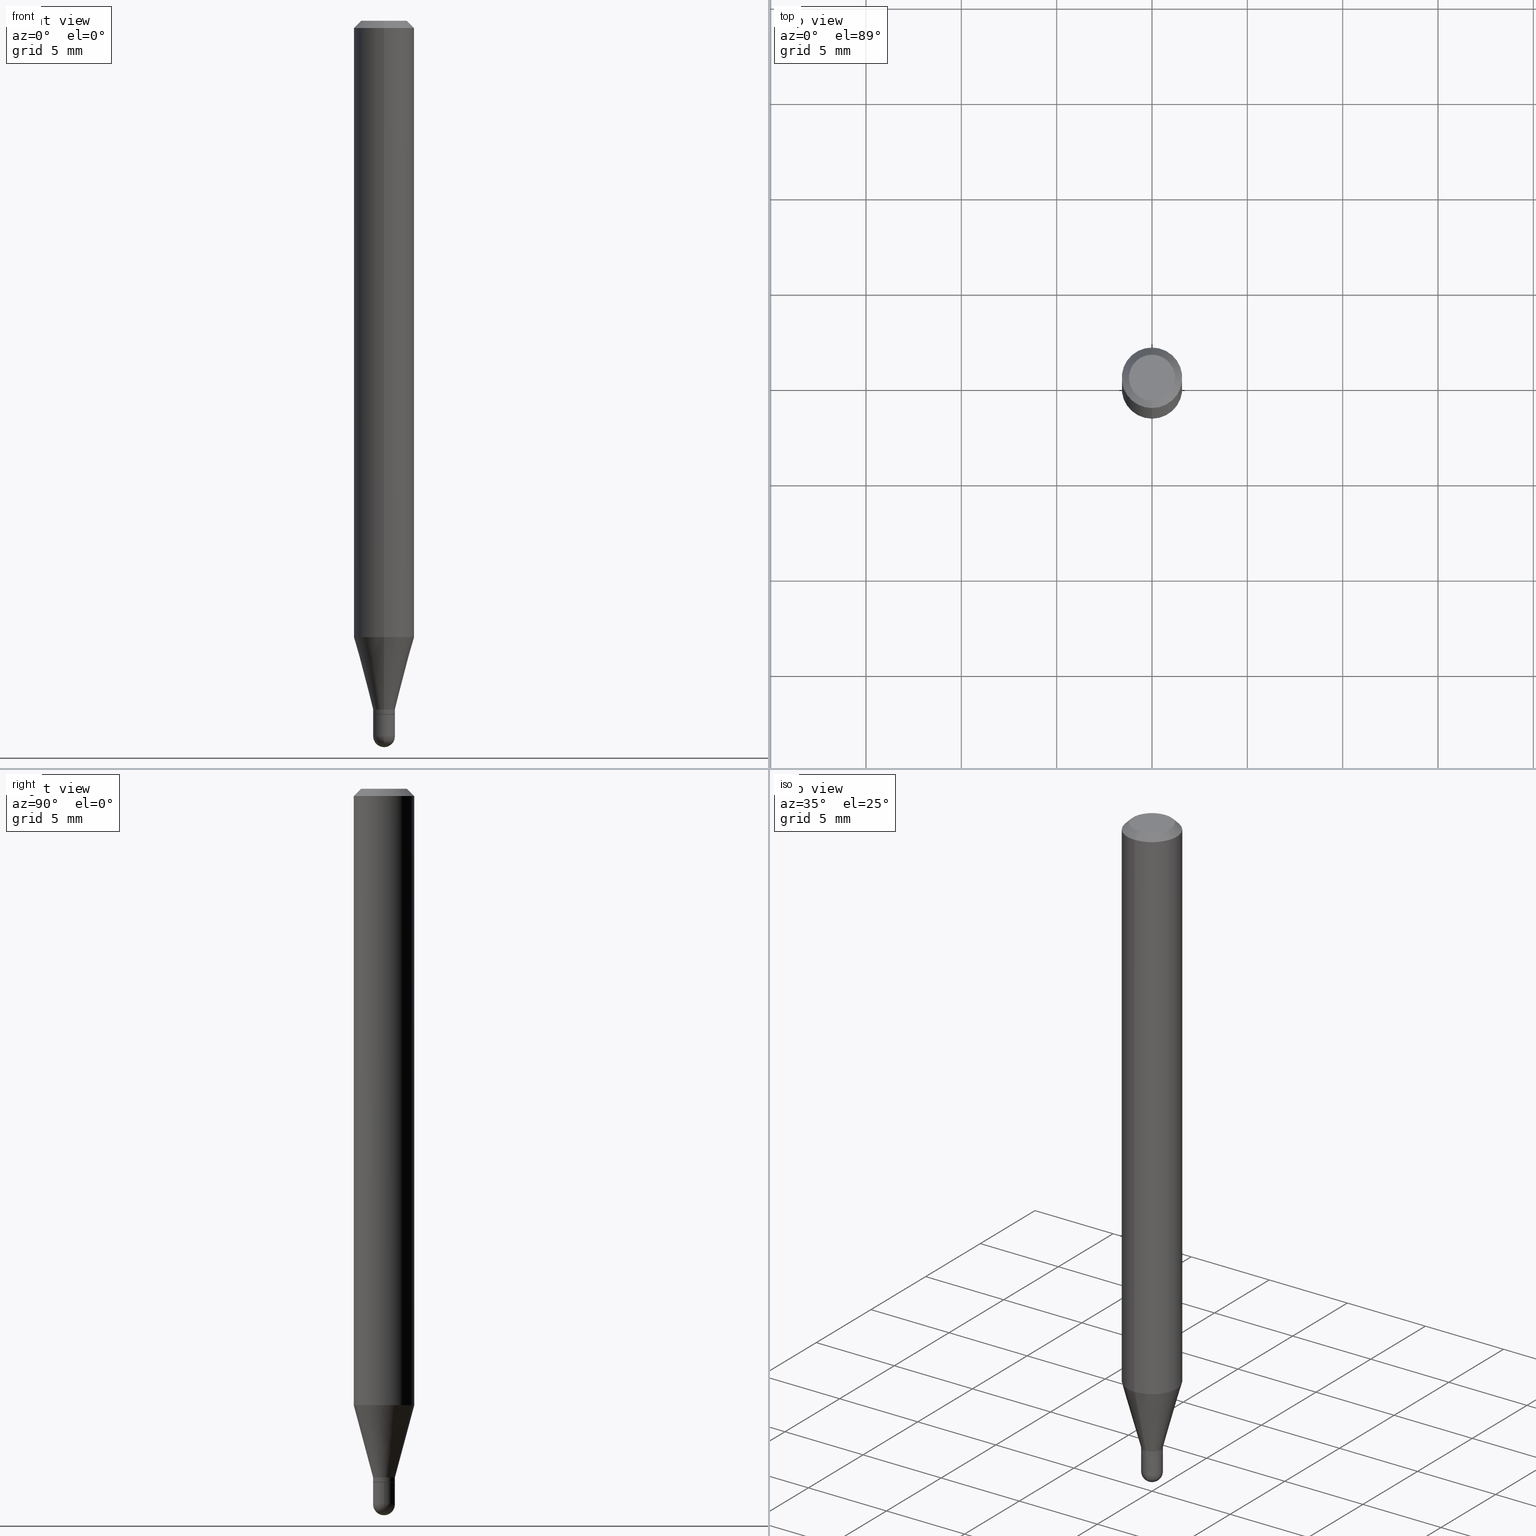
[diagram: canonical four-view strip — front | top / right | iso, engineering-drawing reading convention]
A machine part, canonical four-view strip (front | top / right | iso — engineering-drawing reading convention). The complete STEP part file that produces these views, byte-faithful:
ISO-10303-21;
HEADER;
FILE_DESCRIPTION (( 'STEP AP203' ),
    '1' );
FILE_NAME ('02542.STEP',
    '2024-03-07T20:20:07',
    ( '' ),
    ( '' ),
    'SwSTEP 2.0',
    'SolidWorks 2023',
    '' );
FILE_SCHEMA (( 'CONFIG_CONTROL_DESIGN' ));
ENDSEC;

DATA;
#1 = VECTOR ( 'NONE', #241, 39.37007874015748143 ) ;
#2 = CARTESIAN_POINT ( 'NONE',  ( -1.536251789090628057E-16, -0.02200000000000499473, -1.432000000000000162 ) ) ;
#3 = LINE ( 'NONE', #49, #353 ) ;
#4 = DIRECTION ( 'NONE',  ( -2.445468806185136597E-29, 3.491481338843145583E-15, 1.000000000000000000 ) ) ;
#5 = EDGE_CURVE ( 'NONE', #262, #311, #211, .T. ) ;
#6 = FACE_OUTER_BOUND ( 'NONE', #461, .T. ) ;
#7 = EDGE_CURVE ( 'NONE', #308, #494, #3, .T. ) ;
#8 = AXIS2_PLACEMENT_3D ( 'NONE', #436, #467, #81 ) ;
#9 = DIRECTION ( 'NONE',  ( -2.445467008868060164E-29, 3.491483912703496307E-15, 1.000000000000000000 ) ) ;
#10 = DIRECTION ( 'NONE',  ( 2.445467008868060164E-29, -3.491483912703496307E-15, -1.000000000000000000 ) ) ;
#11 = CARTESIAN_POINT ( 'NONE',  ( -0.02249999999999999917, -4.919360362136043898E-15, -1.432000000000000162 ) ) ;
#12 = CIRCLE ( 'NONE', #87, 0.02249999999999992284 ) ;
#13 = CARTESIAN_POINT ( 'NONE',  ( 3.668200513302170120E-31, -5.237225869055358797E-17, -0.01500000000000032904 ) ) ;
#14 = LENGTH_MEASURE_WITH_UNIT ( LENGTH_MEASURE( 0.02539999999999999897 ), #219 );
#15 = LOCAL_TIME ( 15, 20, 7.000000000000000000, #234 ) ;
#16 = VERTEX_POINT ( 'NONE', #113 ) ;
#17 = ADVANCED_FACE ( 'NONE', ( #6 ), #167, .T. ) ;
#18 = DATE_AND_TIME ( #379, #15 ) ;
#19 = EDGE_LOOP ( 'NONE', ( #348, #333 ) ) ;
#20 = CARTESIAN_POINT ( 'NONE',  ( 0.000000000000000000, 0.000000000000000000, 0.000000000000000000 ) ) ;
#21 = DIRECTION ( 'NONE',  ( -2.445467008868060164E-29, 3.491483912703496307E-15, 1.000000000000000000 ) ) ;
#22 = ORIENTED_EDGE ( 'NONE', *, *, #261, .F. ) ;
#23 = AXIS2_PLACEMENT_3D ( 'NONE', #59, #9, #367 ) ;
#24 = ORIENTED_EDGE ( 'NONE', *, *, #85, .T. ) ;
#25 = DIRECTION ( 'NONE',  ( -2.445468806185136877E-29, 3.491481338843145188E-15, 1.000000000000000000 ) ) ;
#26 = CARTESIAN_POINT ( 'NONE',  ( 3.477454086610382220E-29, -4.964890123864371696E-15, -1.421999999999999931 ) ) ;
#27 = ORIENTED_EDGE ( 'NONE', *, *, #154, .T. ) ;
#28 = EDGE_CURVE ( 'NONE', #163, #117, #68, .T. ) ;
#29 = DIRECTION ( 'NONE',  ( -2.445467008868060164E-29, 3.491483912703496307E-15, 1.000000000000000000 ) ) ;
#30 = CARTESIAN_POINT ( 'NONE',  ( 0.000000000000000000, 0.000000000000000000, 0.000000000000000000 ) ) ;
#31 = ORIENTED_EDGE ( 'NONE', *, *, #321, .F. ) ;
#32 = DIRECTION ( 'NONE',  ( 1.000000000000000000, -6.982962677686269077E-15, 0.000000000000000000 ) ) ;
#33 = ADVANCED_FACE ( 'NONE', ( #251 ), #409, .T. ) ;
#34 = ORIENTED_EDGE ( 'NONE', *, *, #224, .T. ) ;
#35 = CARTESIAN_POINT ( 'NONE',  ( 4.440892098500938748E-16, 0.06249999999999995143, -0.01500000000000054588 ) ) ;
#36 = AXIS2_PLACEMENT_3D ( 'NONE', #129, #71, #42 ) ;
#37 = DIRECTION ( 'NONE',  ( -6.982962677686265133E-15, -1.000000000000000000, 0.000000000000000000 ) ) ;
#38 = EDGE_CURVE ( 'NONE', #199, #16, #110, .T. ) ;
#39 = LINE ( 'NONE', #342, #297 ) ;
#40 = APPLICATION_PROTOCOL_DEFINITION ( 'international standard', 'config_control_design', 1994, #408 ) ;
#41 = CARTESIAN_POINT ( 'NONE',  ( 3.112389801597218534E-29, -4.443674309623619373E-15, -1.272717967697245101 ) ) ;
#42 = DIRECTION ( 'NONE',  ( -6.982962677686265133E-15, -1.000000000000000000, 0.000000000000000000 ) ) ;
#43 = CARTESIAN_POINT ( 'NONE',  ( 3.665317023051724949E-29, -5.241355191211841529E-15, -1.500000000000000222 ) ) ;
#44 = FACE_OUTER_BOUND ( 'NONE', #382, .T. ) ;
#45 = DIRECTION ( 'NONE',  ( 7.105427357601001070E-15, 1.000000000000000000, 0.000000000000000000 ) ) ;
#46 = ORIENTED_EDGE ( 'NONE', *, *, #320, .F. ) ;
#47 = CONICAL_SURFACE ( 'NONE', #384, 0.02249999999999992284, 0.2617993877991501850 ) ;
#48 = VECTOR ( 'NONE', #200, 39.37007874015748143 ) ;
#49 = CARTESIAN_POINT ( 'NONE',  ( -0.02249999999999999917, 1.598721155460225359E-16, -1.106760395307353780E-30 ) ) ;
#50 = DIRECTION ( 'NONE',  ( -6.982962677686265922E-15, -1.000000000000000000, 0.000000000000000000 ) ) ;
#51 = DIRECTION ( 'NONE',  ( -2.445467008868060164E-29, 3.491483912703496307E-15, 1.000000000000000000 ) ) ;
#52 = PERSON_AND_ORGANIZATION_ROLE ( 'creator' ) ;
#53 = VECTOR ( 'NONE', #25, 39.37007874015748143 ) ;
#54 = CARTESIAN_POINT ( 'NONE',  ( 3.501908756699061953E-29, -4.999804962991407495E-15, -1.432000000000000162 ) ) ;
#55 = CC_DESIGN_PERSON_AND_ORGANIZATION_ASSIGNMENT ( #299, #225, ( #177 ) ) ;
#56 = EDGE_CURVE ( 'NONE', #199, #489, #182, .T. ) ;
#57 = DIRECTION ( 'NONE',  ( -6.982962677686265133E-15, -1.000000000000000000, 3.491483912703495913E-15 ) ) ;
#58 = CARTESIAN_POINT ( 'NONE',  ( 4.364351673553919652E-16, 0.06249999999999995143, -0.01500000000000054588 ) ) ;
#59 = CARTESIAN_POINT ( 'NONE',  ( 8.024722357120367576E-45, -1.145719362076640405E-30, -3.281468254537930218E-16 ) ) ;
#60 = EDGE_CURVE ( 'NONE', #16, #199, #123, .T. ) ;
#61 = ORIENTED_EDGE ( 'NONE', *, *, #347, .F. ) ;
#62 = CIRCLE ( 'NONE', #80, 0.02249999999999992284 ) ;
#63 = FACE_OUTER_BOUND ( 'NONE', #190, .T. ) ;
#64 = CC_DESIGN_APPROVAL ( #363, ( #177 ) ) ;
#65 = CARTESIAN_POINT ( 'NONE',  ( 0.000000000000000000, 0.000000000000000000, 0.000000000000000000 ) ) ;
#66 = CARTESIAN_POINT ( 'NONE',  ( -1.571166602479056403E-16, -0.02250000000000488762, -1.421999999999999931 ) ) ;
#67 = VERTEX_POINT ( 'NONE', #329 ) ;
#68 = CIRCLE ( 'NONE', #23, 0.04749999999999999362 ) ;
#69 = FACE_OUTER_BOUND ( 'NONE', #476, .T. ) ;
#70 = ORIENTED_EDGE ( 'NONE', *, *, #387, .F. ) ;
#71 = DIRECTION ( 'NONE',  ( -1.000000000000000000, 6.982962677686265922E-15, -4.883557194083112340E-29 ) ) ;
#72 = COORDINATED_UNIVERSAL_TIME_OFFSET ( 5, 0, .BEHIND. ) ;
#73 = ORIENTED_EDGE ( 'NONE', *, *, #347, .T. ) ;
#74 = CARTESIAN_POINT ( 'NONE',  ( -4.287811248607203282E-16, -0.06250000000000005551, -0.01500000000000011047 ) ) ;
#75 = CARTESIAN_POINT ( 'NONE',  ( 3.611256036987885434E-29, -5.161419133438828807E-15, -1.477500000000000036 ) ) ;
#76 = EDGE_CURVE ( 'NONE', #121, #311, #62, .T. ) ;
#77 = ORIENTED_EDGE ( 'NONE', *, *, #38, .T. ) ;
#78 = CALENDAR_DATE ( 2024, 7, 3 ) ;
#79 = CARTESIAN_POINT ( 'NONE',  ( 0.000000000000000000, 0.000000000000000000, 0.000000000000000000 ) ) ;
#80 = AXIS2_PLACEMENT_3D ( 'NONE', #146, #298, #422 ) ;
#81 = DIRECTION ( 'NONE',  ( 6.982962677686265922E-15, 1.000000000000000000, -3.491483912703496307E-15 ) ) ;
#82 = AXIS2_PLACEMENT_3D ( 'NONE', #30, #485, #57 ) ;
#83 = LINE ( 'NONE', #246, #254 ) ;
#84 = ADVANCED_FACE ( 'NONE', ( #69 ), #394, .T. ) ;
#85 = EDGE_CURVE ( 'NONE', #462, #496, #388, .T. ) ;
#86 = ORIENTED_EDGE ( 'NONE', *, *, #499, .T. ) ;
#87 = AXIS2_PLACEMENT_3D ( 'NONE', #335, #29, #324 ) ;
#88 = AXIS2_PLACEMENT_3D ( 'NONE', #169, #440, #206 ) ;
#89 = DIRECTION ( 'NONE',  ( -2.445468806185136597E-29, 3.491481338843145583E-15, 1.000000000000000000 ) ) ;
#90 = DATE_AND_TIME ( #337, #457 ) ;
#91 = SHAPE_DEFINITION_REPRESENTATION ( #399, #134 ) ;
#92 = CARTESIAN_POINT ( 'NONE',  ( 3.611256036987885434E-29, -5.161419133438828807E-15, -1.477500000000000036 ) ) ;
#93 = EDGE_CURVE ( 'NONE', #489, #67, #313, .T. ) ;
#94 = CONICAL_SURFACE ( 'NONE', #227, 0.06250000000000000000, 0.7853981633974483900 ) ;
#95 = VECTOR ( 'NONE', #349, 39.37007874015748143 ) ;
#96 = DIRECTION ( 'NONE',  ( -1.000000000000000000, 6.982962677686265922E-15, -4.876176775795935793E-29 ) ) ;
#97 = DIRECTION ( 'NONE',  ( 6.982962677686265922E-15, 1.000000000000000000, -3.483106191921935554E-15 ) ) ;
#98 = EDGE_CURVE ( 'NONE', #311, #121, #12, .T. ) ;
#99 = EDGE_CURVE ( 'NONE', #431, #458, #403, .T. ) ;
#100 = ORIENTED_EDGE ( 'NONE', *, *, #224, .F. ) ;
#101 = PERSON_AND_ORGANIZATION ( #478, #465 ) ;
#102 = PERSON_AND_ORGANIZATION ( #478, #465 ) ;
#103 = ADVANCED_FACE ( 'NONE', ( #365 ), #94, .T. ) ;
#104 = CARTESIAN_POINT ( 'NONE',  ( 3.112389801597218534E-29, -4.443674309623619373E-15, -1.272717967697245101 ) ) ;
#105 = ORIENTED_EDGE ( 'NONE', *, *, #276, .F. ) ;
#106 = APPLICATION_PROTOCOL_DEFINITION ( 'international standard', 'config_control_design', 1994, #214 ) ;
#107 = DIRECTION ( 'NONE',  ( -2.445467008868060164E-29, 3.491483912703496307E-15, 1.000000000000000000 ) ) ;
#108 = PRODUCT_RELATED_PRODUCT_CATEGORY ( 'detail', '', ( #116 ) ) ;
#109 = ORIENTED_EDGE ( 'NONE', *, *, #375, .T. ) ;
#110 = CIRCLE ( 'NONE', #512, 0.02249999999999992284 ) ;
#111 = CONICAL_SURFACE ( 'NONE', #130, 0.02249999999999992284, 0.2617993877991501850 ) ;
#112 = ORIENTED_EDGE ( 'NONE', *, *, #375, .F. ) ;
#113 = CARTESIAN_POINT ( 'NONE',  ( 3.019806626980753384E-16, 0.02249999999999496153, -1.421999999999999931 ) ) ;
#114 = DIRECTION ( 'NONE',  ( -2.445467008868060164E-29, 3.491483912703496307E-15, 1.000000000000000000 ) ) ;
#115 = EDGE_LOOP ( 'NONE', ( #70, #407, #341, #507 ) ) ;
#116 = PRODUCT ( '02542', '02542', '', ( #359 ) ) ;
#117 = VERTEX_POINT ( 'NONE', #328 ) ;
#118 = PERSON_AND_ORGANIZATION ( #478, #465 ) ;
#119 = FACE_OUTER_BOUND ( 'NONE', #307, .T. ) ;
#120 = CARTESIAN_POINT ( 'NONE',  ( 1.563194018672570129E-16, 0.02199999999999499925, -1.432000000000000162 ) ) ;
#121 = VERTEX_POINT ( 'NONE', #452 ) ;
#122 = DESIGN_CONTEXT ( 'detailed design', #408, 'design' ) ;
#123 = CIRCLE ( 'NONE', #493, 0.02249999999999992284 ) ;
#124 = CIRCLE ( 'NONE', #405, 0.02249999999999999917 ) ;
#125 = DIRECTION ( 'NONE',  ( -2.445467008868060164E-29, 3.491483912703496307E-15, 1.000000000000000000 ) ) ;
#126 = DIRECTION ( 'NONE',  ( 2.445467008868060164E-29, -3.491483912703496307E-15, -1.000000000000000000 ) ) ;
#127 = ORIENTED_EDGE ( 'NONE', *, *, #320, .T. ) ;
#128 = CARTESIAN_POINT ( 'NONE',  ( -1.571166602479054924E-16, -0.02250000000000525191, -1.477500000000000036 ) ) ;
#129 = CARTESIAN_POINT ( 'NONE',  ( 3.611256036987885434E-29, -5.161419133438828807E-15, -1.477500000000000036 ) ) ;
#130 = AXIS2_PLACEMENT_3D ( 'NONE', #209, #479, #37 ) ;
#131 = ADVANCED_FACE ( 'NONE', ( #484 ), #487, .T. ) ;
#132 = CC_DESIGN_PERSON_AND_ORGANIZATION_ASSIGNMENT ( #480, #52, ( #172 ) ) ;
#133 = DIRECTION ( 'NONE',  ( -2.445468806185136597E-29, 3.491481338843145583E-15, 1.000000000000000000 ) ) ;
#134 = ADVANCED_BREP_SHAPE_REPRESENTATION ( '02542', ( #166, #497, #88 ), #373 ) ;
#135 = CARTESIAN_POINT ( 'NONE',  ( 3.840629472727447874E-16, 0.04749999999999999362, -4.939923113072090255E-16 ) ) ;
#136 = AXIS2_PLACEMENT_3D ( 'NONE', #65, #380, #222 ) ;
#137 = AXIS2_PLACEMENT_3D ( 'NONE', #289, #51, #173 ) ;
#138 = FACE_OUTER_BOUND ( 'NONE', #147, .T. ) ;
#139 = CARTESIAN_POINT ( 'NONE',  ( 4.440892098500625669E-16, 0.06250000000000000000, -2.182177445439684946E-16 ) ) ;
#140 = DIRECTION ( 'NONE',  ( 4.937700262164548042E-15, 0.7071067811865451302, -0.7071067811865499042 ) ) ;
#141 = APPROVAL_DATE_TIME ( #486, #475 ) ;
#142 = ADVANCED_FACE ( 'NONE', ( #63 ), #446, .T. ) ;
#143 = ORIENTED_EDGE ( 'NONE', *, *, #93, .F. ) ;
#144 = CALENDAR_DATE ( 2024, 7, 3 ) ;
#145 = CARTESIAN_POINT ( 'NONE',  ( 0.000000000000000000, 0.000000000000000000, 0.000000000000000000 ) ) ;
#146 = CARTESIAN_POINT ( 'NONE',  ( 3.500686023194629143E-29, -4.998059221035055665E-15, -1.431500000000000217 ) ) ;
#147 = EDGE_LOOP ( 'NONE', ( #419, #265 ) ) ;
#148 = CIRCLE ( 'NONE', #36, 0.02250000000000018652 ) ;
#149 = ORIENTED_EDGE ( 'NONE', *, *, #154, .F. ) ;
#150 = CC_DESIGN_PERSON_AND_ORGANIZATION_ASSIGNMENT ( #101, #221, ( #172 ) ) ;
#151 = DIRECTION ( 'NONE',  ( -2.445467008868060164E-29, 3.491483912703496307E-15, 1.000000000000000000 ) ) ;
#152 = FACE_OUTER_BOUND ( 'NONE', #194, .T. ) ;
#153 = ORIENTED_EDGE ( 'NONE', *, *, #368, .F. ) ;
#154 = EDGE_CURVE ( 'NONE', #262, #451, #318, .T. ) ;
#155 = AXIS2_PLACEMENT_3D ( 'NONE', #413, #229, #390 ) ;
#156 = CIRCLE ( 'NONE', #137, 0.04749999999999999362 ) ;
#157 = DIRECTION ( 'NONE',  ( -2.445467008868060164E-29, 3.491483912703496307E-15, 1.000000000000000000 ) ) ;
#158 = EDGE_LOOP ( 'NONE', ( #27, #109, #230, #293 ) ) ;
#159 = FACE_OUTER_BOUND ( 'NONE', #424, .T. ) ;
#160 = ADVANCED_FACE ( 'NONE', ( #138 ), #181, .F. ) ;
#161 = ORIENTED_EDGE ( 'NONE', *, *, #5, .T. ) ;
#162 = CARTESIAN_POINT ( 'NONE',  ( 1.580957587066569691E-16, 0.02199999999999499925, -1.432000000000000162 ) ) ;
#163 = VERTEX_POINT ( 'NONE', #135 ) ;
#164 = LOCAL_TIME ( 15, 20, 7.000000000000000000, #272 ) ;
#165 = CARTESIAN_POINT ( 'NONE',  ( -0.02249999999999999917, -4.919360362136043898E-15, -1.477500000000000036 ) ) ;
#166 = MANIFOLD_SOLID_BREP ( 'Body-Move/Copy2[1]', #285 ) ;
#167 = CYLINDRICAL_SURFACE ( 'NONE', #253, 0.02249999999999992284 ) ;
#168 = FACE_OUTER_BOUND ( 'NONE', #115, .T. ) ;
#169 = CARTESIAN_POINT ( 'NONE',  ( 0.000000000000000000, 0.000000000000000000, 0.000000000000000000 ) ) ;
#170 = ADVANCED_FACE ( 'NONE', ( #449 ), #255, .T. ) ;
#171 = CIRCLE ( 'NONE', #456, 0.02199999999999999872 ) ;
#172 = PRODUCT_DEFINITION_FORMATION_WITH_SPECIFIED_SOURCE ( 'ANY', '', #116, .NOT_KNOWN. ) ;
#173 = DIRECTION ( 'NONE',  ( -6.982962677686266711E-15, -1.000000000000000000, 3.491483912703496307E-15 ) ) ;
#174 = DIRECTION ( 'NONE',  ( -2.445467008868060164E-29, 3.491483912703496307E-15, 1.000000000000000000 ) ) ;
#175 = EDGE_CURVE ( 'NONE', #451, #262, #171, .T. ) ;
#176 = VECTOR ( 'NONE', #140, 39.37007874015748143 ) ;
#177 = SECURITY_CLASSIFICATION ( '', '', #495 ) ;
#178 = EDGE_CURVE ( 'NONE', #196, #220, #186, .T. ) ;
#179 = ORIENTED_EDGE ( 'NONE', *, *, #60, .T. ) ;
#180 = COORDINATED_UNIVERSAL_TIME_OFFSET ( 5, 0, .BEHIND. ) ;
#181 = PLANE ( 'NONE',  #464 ) ;
#182 = LINE ( 'NONE', #66, #410 ) ;
#183 = ORIENTED_EDGE ( 'NONE', *, *, #98, .T. ) ;
#184 = ORIENTED_EDGE ( 'NONE', *, *, #38, .F. ) ;
#185 = ADVANCED_FACE ( 'NONE', ( #168 ), #242, .T. ) ;
#186 = CIRCLE ( 'NONE', #400, 0.02250000000000018652 ) ;
#187 = AXIS2_PLACEMENT_3D ( 'NONE', #195, #303, #204 ) ;
#188 = AXIS2_PLACEMENT_3D ( 'NONE', #506, #470, #32 ) ;
#189 = DIRECTION ( 'NONE',  ( -6.982962677686265133E-15, -1.000000000000000000, 0.000000000000000000 ) ) ;
#190 = EDGE_LOOP ( 'NONE', ( #453, #237, #378, #105 ) ) ;
#191 = PLANE ( 'NONE',  #322 ) ;
#192 = EDGE_LOOP ( 'NONE', ( #247, #294, #223, #24, #314 ) ) ;
#193 = EDGE_CURVE ( 'NONE', #311, #199, #252, .T. ) ;
#194 = EDGE_LOOP ( 'NONE', ( #149, #385 ) ) ;
#195 = CARTESIAN_POINT ( 'NONE',  ( 3.613180161138538918E-29, -5.158663678140747361E-15, -1.477500000000000036 ) ) ;
#196 = VERTEX_POINT ( 'NONE', #43 ) ;
#197 = DIRECTION ( 'NONE',  ( -6.982962677686265133E-15, -1.000000000000000000, 3.491483912703495913E-15 ) ) ;
#198 = DIRECTION ( 'NONE',  ( -4.851104656540964275E-15, -0.7071067811865500152, -0.7071067811865450192 ) ) ;
#199 = VERTEX_POINT ( 'NONE', #235 ) ;
#200 = DIRECTION ( 'NONE',  ( 1.839019923739599526E-15, 0.2588190451025248473, 0.9659258262890670910 ) ) ;
#201 = ORIENTED_EDGE ( 'NONE', *, *, #309, .T. ) ;
#202 = DIRECTION ( 'NONE',  ( -2.445467008868060164E-29, 3.491483912703496307E-15, 1.000000000000000000 ) ) ;
#203 = DIRECTION ( 'NONE',  ( 1.000000000000000000, -6.982962677686269077E-15, 0.000000000000000000 ) ) ;
#204 = DIRECTION ( 'NONE',  ( 1.000000000000000000, -6.982962677686269077E-15, 0.000000000000000000 ) ) ;
#205 = CARTESIAN_POINT ( 'NONE',  ( -4.364351673553605587E-16, -0.06250000000000446865, -1.272717967697244879 ) ) ;
#206 = DIRECTION ( 'NONE',  ( 1.000000000000000000, 0.000000000000000000, 0.000000000000000000 ) ) ;
#207 = EDGE_CURVE ( 'NONE', #345, #462, #266, .T. ) ;
#208 = ADVANCED_FACE ( 'NONE', ( #350 ), #398, .F. ) ;
#209 = CARTESIAN_POINT ( 'NONE',  ( 3.477454086610382220E-29, -4.964890123864371696E-15, -1.421999999999999931 ) ) ;
#210 = CARTESIAN_POINT ( 'NONE',  ( -1.571166602479404241E-16, -0.02249999999999992284, 7.855838803582839131E-17 ) ) ;
#211 = LINE ( 'NONE', #2, #501 ) ;
#212 = AXIS2_PLACEMENT_3D ( 'NONE', #352, #287, #275 ) ;
#213 = DIRECTION ( 'NONE',  ( -2.445467008868060164E-29, 3.491483912703496307E-15, 1.000000000000000000 ) ) ;
#214 = APPLICATION_CONTEXT ( 'configuration controlled 3d designs of mechanical parts and assemblies' ) ;
#215 = ADVANCED_FACE ( 'NONE', ( #159 ), #47, .T. ) ;
#216 = AXIS2_PLACEMENT_3D ( 'NONE', #472, #125, #274 ) ;
#217 = APPROVAL_PERSON_ORGANIZATION ( #279, #475, #426 ) ;
#218 = DIRECTION ( 'NONE',  ( -6.982962677686265922E-15, -1.000000000000000000, 0.000000000000000000 ) ) ;
#219 =( LENGTH_UNIT ( ) NAMED_UNIT ( * ) SI_UNIT ( $, .METRE. ) );
#220 = VERTEX_POINT ( 'NONE', #429 ) ;
#221 = PERSON_AND_ORGANIZATION_ROLE ( 'design_supplier' ) ;
#222 = DIRECTION ( 'NONE',  ( -6.982962677686265922E-15, -1.000000000000000000, 3.491483912703495913E-15 ) ) ;
#223 = ORIENTED_EDGE ( 'NONE', *, *, #207, .T. ) ;
#224 = EDGE_CURVE ( 'NONE', #117, #431, #315, .T. ) ;
#225 = PERSON_AND_ORGANIZATION_ROLE ( 'classification_officer' ) ;
#226 = ORIENTED_EDGE ( 'NONE', *, *, #261, .T. ) ;
#227 = AXIS2_PLACEMENT_3D ( 'NONE', #13, #10, #97 ) ;
#228 = APPROVAL_PERSON_ORGANIZATION ( #463, #243, #421 ) ;
#229 = DIRECTION ( 'NONE',  ( -2.445467008868060164E-29, 3.491483912703496307E-15, 1.000000000000000000 ) ) ;
#230 = ORIENTED_EDGE ( 'NONE', *, *, #98, .F. ) ;
#231 = ORIENTED_EDGE ( 'NONE', *, *, #309, .F. ) ;
#232 = DIRECTION ( 'NONE',  ( -2.445467008868060164E-29, 3.491483912703496307E-15, 1.000000000000000000 ) ) ;
#233 = ORIENTED_EDGE ( 'NONE', *, *, #76, .T. ) ;
#234 = COORDINATED_UNIVERSAL_TIME_OFFSET ( 5, 0, .BEHIND. ) ;
#235 = CARTESIAN_POINT ( 'NONE',  ( -1.571166602479056403E-16, -0.02250000000000488762, -1.421999999999999931 ) ) ;
#236 = AXIS2_PLACEMENT_3D ( 'NONE', #336, #244, #511 ) ;
#237 = ORIENTED_EDGE ( 'NONE', *, *, #387, .T. ) ;
#238 = CC_DESIGN_SECURITY_CLASSIFICATION ( #177, ( #172 ) ) ;
#239 = DATE_AND_TIME ( #78, #164 ) ;
#240 = DIRECTION ( 'NONE',  ( -2.445468806185136597E-29, 3.491481338843145583E-15, 1.000000000000000000 ) ) ;
#241 = DIRECTION ( 'NONE',  ( 5.024295867788190974E-15, 0.7071067811865681119, 0.7071067811865270336 ) ) ;
#242 = SPHERICAL_SURFACE ( 'NONE', #212, 0.02250000000000018652 ) ;
#243 = APPROVAL ( #267, 'UNSPECIFIED' ) ;
#244 = DIRECTION ( 'NONE',  ( -2.445468806185136597E-29, 3.491481338843145583E-15, 1.000000000000000000 ) ) ;
#245 = DIRECTION ( 'NONE',  ( 1.000000000000000000, -6.982962677686269077E-15, 0.000000000000000000 ) ) ;
#246 = CARTESIAN_POINT ( 'NONE',  ( 1.598721155460219689E-16, 0.02249999999999992284, -7.855838803582839131E-17 ) ) ;
#247 = ORIENTED_EDGE ( 'NONE', *, *, #7, .F. ) ;
#248 = AXIS2_PLACEMENT_3D ( 'NONE', #145, #151, #425 ) ;
#249 = EDGE_CURVE ( 'NONE', #489, #431, #39, .T. ) ;
#250 = AXIS2_PLACEMENT_3D ( 'NONE', #283, #509, #344 ) ;
#251 = FACE_OUTER_BOUND ( 'NONE', #505, .T. ) ;
#252 = LINE ( 'NONE', #210, #302 ) ;
#253 = AXIS2_PLACEMENT_3D ( 'NONE', #79, #428, #197 ) ;
#254 = VECTOR ( 'NONE', #232, 39.37007874015748143 ) ;
#255 = CYLINDRICAL_SURFACE ( 'NONE', #248, 0.06250000000000000000 ) ;
#256 = LINE ( 'NONE', #139, #95 ) ;
#257 = ORIENTED_EDGE ( 'NONE', *, *, #56, .T. ) ;
#258 = CARTESIAN_POINT ( 'NONE',  ( 3.668200513302170120E-31, -5.237225869055358797E-17, -0.01500000000000032904 ) ) ;
#259 = AXIS2_PLACEMENT_3D ( 'NONE', #258, #364, #454 ) ;
#260 = ADVANCED_FACE ( 'NONE', ( #152 ), #191, .F. ) ;
#261 = EDGE_CURVE ( 'NONE', #163, #458, #383, .T. ) ;
#262 = VERTEX_POINT ( 'NONE', #370 ) ;
#263 = ORIENTED_EDGE ( 'NONE', *, *, #60, .F. ) ;
#264 = CARTESIAN_POINT ( 'NONE',  ( 3.477454086610382220E-29, -4.964890123864371696E-15, -1.421999999999999931 ) ) ;
#265 = ORIENTED_EDGE ( 'NONE', *, *, #340, .T. ) ;
#266 = CIRCLE ( 'NONE', #236, 0.02249999999999999917 ) ;
#267 = APPROVAL_STATUS ( 'not_yet_approved' ) ;
#268 = CYLINDRICAL_SURFACE ( 'NONE', #82, 0.02249999999999992284 ) ;
#269 = ORIENTED_EDGE ( 'NONE', *, *, #276, .T. ) ;
#270 = CARTESIAN_POINT ( 'NONE',  ( 3.668200513302170120E-31, -5.237225869055358797E-17, -0.01500000000000032904 ) ) ;
#271 = DIRECTION ( 'NONE',  ( -6.982962677686265133E-15, -1.000000000000000000, 0.000000000000000000 ) ) ;
#272 = COORDINATED_UNIVERSAL_TIME_OFFSET ( 5, 0, .BEHIND. ) ;
#273 = PERSON_AND_ORGANIZATION_ROLE ( 'design_owner' ) ;
#274 = DIRECTION ( 'NONE',  ( -6.982962677686265922E-15, -1.000000000000000000, 3.483106191921935554E-15 ) ) ;
#275 = DIRECTION ( 'NONE',  ( -6.982962677686265133E-15, -1.000000000000000000, 0.000000000000000000 ) ) ;
#276 = EDGE_CURVE ( 'NONE', #220, #308, #372, .T. ) ;
#277 = CLOSED_SHELL ( 'NONE', ( #17, #443, #423, #170, #334, #215, #33, #103, #208, #260, #84, #459 ) ) ;
#278 = CC_DESIGN_APPROVAL ( #243, ( #172 ) ) ;
#279 = PERSON_AND_ORGANIZATION ( #478, #465 ) ;
#280 = CARTESIAN_POINT ( 'NONE',  ( -4.364351673553912750E-16, -0.06250000000000005551, -0.01500000000000011047 ) ) ;
#281 = ORIENTED_EDGE ( 'NONE', *, *, #193, .F. ) ;
#282 =( NAMED_UNIT ( * ) PLANE_ANGLE_UNIT ( ) SI_UNIT ( $, .RADIAN. ) );
#283 = CARTESIAN_POINT ( 'NONE',  ( 0.000000000000000000, 0.000000000000000000, 0.000000000000000000 ) ) ;
#284 = DIRECTION ( 'NONE',  ( -2.445467008868060164E-29, 3.491483912703496307E-15, 1.000000000000000000 ) ) ;
#285 = CLOSED_SHELL ( 'NONE', ( #356, #185, #160, #142, #131 ) ) ;
#286 = DIRECTION ( 'NONE',  ( -6.982962677686265922E-15, -1.000000000000000000, 3.491483912703496307E-15 ) ) ;
#287 = DIRECTION ( 'NONE',  ( 1.000000000000000000, -6.982962677686265133E-15, 4.883557194083112340E-29 ) ) ;
#288 = APPROVAL_DATE_TIME ( #90, #243 ) ;
#289 = CARTESIAN_POINT ( 'NONE',  ( 8.024722357120367576E-45, -1.145719362076640405E-30, -3.281468254537930218E-16 ) ) ;
#290 = DIRECTION ( 'NONE',  ( 1.000000000000000000, -6.982962677686266711E-15, 4.876176775795935793E-29 ) ) ;
#291 = AXIS2_PLACEMENT_3D ( 'NONE', #54, #174, #218 ) ;
#292 = CARTESIAN_POINT ( 'NONE',  ( 1.571166602479759968E-16, 0.02249999999999499969, -1.432000000000000162 ) ) ;
#293 = ORIENTED_EDGE ( 'NONE', *, *, #5, .F. ) ;
#294 = ORIENTED_EDGE ( 'NONE', *, *, #415, .T. ) ;
#295 = DATE_AND_TIME ( #144, #354 ) ;
#296 = ORIENTED_EDGE ( 'NONE', *, *, #175, .T. ) ;
#297 = VECTOR ( 'NONE', #202, 39.37007874015748143 ) ;
#298 = DIRECTION ( 'NONE',  ( -2.445467008868060164E-29, 3.491483912703496307E-15, 1.000000000000000000 ) ) ;
#299 = PERSON_AND_ORGANIZATION ( #478, #465 ) ;
#300 = CARTESIAN_POINT ( 'NONE',  ( 3.501908756699061953E-29, -4.999804962991407495E-15, -1.432000000000000162 ) ) ;
#301 = ORIENTED_EDGE ( 'NONE', *, *, #249, .F. ) ;
#302 = VECTOR ( 'NONE', #434, 39.37007874015748143 ) ;
#303 = DIRECTION ( 'NONE',  ( -2.445468806185136597E-29, 3.491481338843145583E-15, 1.000000000000000000 ) ) ;
#304 = CIRCLE ( 'NONE', #187, 0.02249999999999999917 ) ;
#305 = DIRECTION ( 'NONE',  ( 6.982962677686265922E-15, 1.000000000000000000, -3.483106191921935554E-15 ) ) ;
#306 = DIRECTION ( 'NONE',  ( -6.982962677686265922E-15, -1.000000000000000000, 0.000000000000000000 ) ) ;
#307 = EDGE_LOOP ( 'NONE', ( #269, #502, #31, #343, #401 ) ) ;
#308 = VERTEX_POINT ( 'NONE', #165 ) ;
#309 = EDGE_CURVE ( 'NONE', #67, #489, #432, .T. ) ;
#310 = LINE ( 'NONE', #120, #1 ) ;
#311 = VERTEX_POINT ( 'NONE', #317 ) ;
#312 =( CONVERSION_BASED_UNIT ( 'INCH', #14 ) LENGTH_UNIT ( ) NAMED_UNIT ( #474 ) );
#313 = CIRCLE ( 'NONE', #483, 0.06250000000000000000 ) ;
#314 = ORIENTED_EDGE ( 'NONE', *, *, #340, .F. ) ;
#315 = LINE ( 'NONE', #74, #471 ) ;
#316 = DIRECTION ( 'NONE',  ( 1.000000000000000000, -6.982962677686269077E-15, 0.000000000000000000 ) ) ;
#317 = CARTESIAN_POINT ( 'NONE',  ( -1.571166602479059608E-16, -0.02250000000000499864, -1.431500000000000217 ) ) ;
#318 = CIRCLE ( 'NONE', #291, 0.02199999999999999872 ) ;
#319 = CONICAL_SURFACE ( 'NONE', #473, 0.06250000000000000000, 0.7853981633974483900 ) ;
#320 = EDGE_CURVE ( 'NONE', #458, #431, #339, .T. ) ;
#321 = EDGE_CURVE ( 'NONE', #496, #494, #124, .T. ) ;
#322 = AXIS2_PLACEMENT_3D ( 'NONE', #358, #439, #286 ) ;
#323 = CALENDAR_DATE ( 2024, 7, 3 ) ;
#324 = DIRECTION ( 'NONE',  ( -6.982962677686265133E-15, -1.000000000000000000, 0.000000000000000000 ) ) ;
#325 = ORIENTED_EDGE ( 'NONE', *, *, #99, .T. ) ;
#326 = DIRECTION ( 'NONE',  ( -1.807323732225329350E-15, -0.2588190451025180194, 0.9659258262890689783 ) ) ;
#327 = ORIENTED_EDGE ( 'NONE', *, *, #76, .F. ) ;
#328 = CARTESIAN_POINT ( 'NONE',  ( -3.773273898774340269E-16, -0.04749999999999999362, -1.623013396003769689E-16 ) ) ;
#329 = CARTESIAN_POINT ( 'NONE',  ( 4.440892098500934804E-16, 0.06249999999999552441, -1.272717967697245323 ) ) ;
#330 = ORIENTED_EDGE ( 'NONE', *, *, #249, .T. ) ;
#331 = AXIS2_PLACEMENT_3D ( 'NONE', #41, #213, #395 ) ;
#332 = DIRECTION ( 'NONE',  ( -6.982962677686265133E-15, -1.000000000000000000, 0.000000000000000000 ) ) ;
#333 = ORIENTED_EDGE ( 'NONE', *, *, #444, .T. ) ;
#334 = ADVANCED_FACE ( 'NONE', ( #44 ), #111, .T. ) ;
#335 = CARTESIAN_POINT ( 'NONE',  ( 3.500686023194629143E-29, -4.998059221035055665E-15, -1.431500000000000217 ) ) ;
#336 = CARTESIAN_POINT ( 'NONE',  ( 3.613180161138538918E-29, -5.158663678140747361E-15, -1.477500000000000036 ) ) ;
#337 = CALENDAR_DATE ( 2024, 7, 3 ) ;
#338 = ORIENTED_EDGE ( 'NONE', *, *, #28, .F. ) ;
#339 = CIRCLE ( 'NONE', #216, 0.06250000000000000000 ) ;
#340 = EDGE_CURVE ( 'NONE', #494, #496, #447, .T. ) ;
#341 = ORIENTED_EDGE ( 'NONE', *, *, #361, .F. ) ;
#342 = CARTESIAN_POINT ( 'NONE',  ( -4.364351673553916201E-16, -0.06250000000000000000, 2.182177445439684946E-16 ) ) ;
#343 = ORIENTED_EDGE ( 'NONE', *, *, #85, .F. ) ;
#344 = DIRECTION ( 'NONE',  ( 1.000000000000000000, -6.982962677686266711E-15, 4.876176775795935793E-29 ) ) ;
#345 = VERTEX_POINT ( 'NONE', #128 ) ;
#346 = CYLINDRICAL_SURFACE ( 'NONE', #250, 0.02249999999999999917 ) ;
#347 = EDGE_CURVE ( 'NONE', #16, #67, #430, .T. ) ;
#348 = ORIENTED_EDGE ( 'NONE', *, *, #28, .T. ) ;
#349 = DIRECTION ( 'NONE',  ( -2.445467008868060164E-29, 3.491483912703496307E-15, 1.000000000000000000 ) ) ;
#350 = FACE_OUTER_BOUND ( 'NONE', #19, .T. ) ;
#351 = CARTESIAN_POINT ( 'NONE',  ( 3.501911330457115844E-29, -4.999801277223385014E-15, -1.432000000000000162 ) ) ;
#352 = CARTESIAN_POINT ( 'NONE',  ( 3.611256036987885434E-29, -5.161419133438828807E-15, -1.477500000000000036 ) ) ;
#353 = VECTOR ( 'NONE', #357, 39.37007874015748143 ) ;
#354 = LOCAL_TIME ( 15, 20, 7.000000000000000000, #180 ) ;
#355 = CARTESIAN_POINT ( 'NONE',  ( 3.501911330457115844E-29, -4.999801277223385014E-15, -1.432000000000000162 ) ) ;
#356 = ADVANCED_FACE ( 'NONE', ( #119 ), #346, .T. ) ;
#357 = DIRECTION ( 'NONE',  ( -2.445468806185136877E-29, 3.491481338843145188E-15, 1.000000000000000000 ) ) ;
#358 = CARTESIAN_POINT ( 'NONE',  ( 3.501908756699061953E-29, -4.999804962991407495E-15, -1.432000000000000162 ) ) ;
#359 = MECHANICAL_CONTEXT ( 'NONE', #214, 'mechanical' ) ;
#360 = APPROVAL_DATE_TIME ( #295, #363 ) ;
#361 = EDGE_CURVE ( 'NONE', #462, #220, #481, .T. ) ;
#362 = AXIS2_PLACEMENT_3D ( 'NONE', #92, #404, #482 ) ;
#363 = APPROVAL ( #374, 'UNSPECIFIED' ) ;
#364 = DIRECTION ( 'NONE',  ( -2.445467008868060164E-29, 3.491483912703496307E-15, 1.000000000000000000 ) ) ;
#365 = FACE_OUTER_BOUND ( 'NONE', #392, .T. ) ;
#366 = CARTESIAN_POINT ( 'NONE',  ( 0.02249999999999999917, -5.236349137930007031E-15, -1.477500000000000036 ) ) ;
#367 = DIRECTION ( 'NONE',  ( -6.982962677686266711E-15, -1.000000000000000000, 3.491483912703496307E-15 ) ) ;
#368 = EDGE_CURVE ( 'NONE', #121, #16, #83, .T. ) ;
#369 =( NAMED_UNIT ( * ) SI_UNIT ( $, .STERADIAN. ) SOLID_ANGLE_UNIT ( ) );
#370 = CARTESIAN_POINT ( 'NONE',  ( -1.536251789090628057E-16, -0.02200000000000499473, -1.432000000000000162 ) ) ;
#371 = DIRECTION ( 'NONE',  ( 2.438088387897960049E-29, -3.491481338843145188E-15, -1.000000000000000000 ) ) ;
#372 = CIRCLE ( 'NONE', #442, 0.02249999999999999917 ) ;
#373 =( GEOMETRIC_REPRESENTATION_CONTEXT ( 3 ) GLOBAL_UNCERTAINTY_ASSIGNED_CONTEXT ( ( #435 ) ) GLOBAL_UNIT_ASSIGNED_CONTEXT ( ( #312, #282, #369 ) ) REPRESENTATION_CONTEXT ( 'NONE', 'WORKASPACE' ) );
#374 = APPROVAL_STATUS ( 'not_yet_approved' ) ;
#375 = EDGE_CURVE ( 'NONE', #451, #121, #310, .T. ) ;
#376 = APPROVAL_STATUS ( 'not_yet_approved' ) ;
#377 = CARTESIAN_POINT ( 'NONE',  ( 3.477454086610382220E-29, -4.964890123864371696E-15, -1.421999999999999931 ) ) ;
#378 = ORIENTED_EDGE ( 'NONE', *, *, #415, .F. ) ;
#379 = CALENDAR_DATE ( 2024, 7, 3 ) ;
#380 = DIRECTION ( 'NONE',  ( -2.445467008868060164E-29, 3.491483912703496307E-15, 1.000000000000000000 ) ) ;
#381 = DIRECTION ( 'NONE',  ( -4.937700262164674260E-15, -0.7071067811865632269, 0.7071067811865319186 ) ) ;
#382 = EDGE_LOOP ( 'NONE', ( #77, #73, #143, #412 ) ) ;
#383 = LINE ( 'NONE', #58, #176 ) ;
#384 = AXIS2_PLACEMENT_3D ( 'NONE', #26, #114, #271 ) ;
#385 = ORIENTED_EDGE ( 'NONE', *, *, #175, .F. ) ;
#386 = CC_DESIGN_DATE_AND_TIME_ASSIGNMENT ( #18, #491, ( #177 ) ) ;
#387 = EDGE_CURVE ( 'NONE', #196, #345, #148, .T. ) ;
#388 = LINE ( 'NONE', #455, #53 ) ;
#389 = ORIENTED_EDGE ( 'NONE', *, *, #193, .T. ) ;
#390 = DIRECTION ( 'NONE',  ( -6.982962677686265922E-15, -1.000000000000000000, 0.000000000000000000 ) ) ;
#391 = COORDINATED_UNIVERSAL_TIME_OFFSET ( 5, 0, .BEHIND. ) ;
#392 = EDGE_LOOP ( 'NONE', ( #100, #338, #226, #127 ) ) ;
#393 = PERSON_AND_ORGANIZATION ( #478, #465 ) ;
#394 = CONICAL_SURFACE ( 'NONE', #155, 0.02199999999999999872, 0.7853981633974739252 ) ;
#395 = DIRECTION ( 'NONE',  ( -6.982962677686265922E-15, -1.000000000000000000, 4.370956789862821150E-15 ) ) ;
#396 = LOCAL_TIME ( 15, 20, 7.000000000000000000, #391 ) ;
#397 = DATE_TIME_ROLE ( 'creation_date' ) ;
#398 = PLANE ( 'NONE',  #8 ) ;
#399 = PRODUCT_DEFINITION_SHAPE ( 'NONE', 'NONE',  #508 ) ;
#400 = AXIS2_PLACEMENT_3D ( 'NONE', #75, #477, #45 ) ;
#401 = ORIENTED_EDGE ( 'NONE', *, *, #361, .T. ) ;
#402 = CC_DESIGN_PERSON_AND_ORGANIZATION_ASSIGNMENT ( #118, #273, ( #116 ) ) ;
#403 = CIRCLE ( 'NONE', #259, 0.06250000000000000000 ) ;
#404 = DIRECTION ( 'NONE',  ( 1.000000000000000000, -6.982962677686265133E-15, 4.883557194083112340E-29 ) ) ;
#405 = AXIS2_PLACEMENT_3D ( 'NONE', #355, #4, #245 ) ;
#406 = ORIENTED_EDGE ( 'NONE', *, *, #444, .F. ) ;
#407 = ORIENTED_EDGE ( 'NONE', *, *, #178, .T. ) ;
#408 = APPLICATION_CONTEXT ( 'configuration controlled 3d designs of mechanical parts and assemblies' ) ;
#409 = CYLINDRICAL_SURFACE ( 'NONE', #136, 0.06250000000000000000 ) ;
#410 = VECTOR ( 'NONE', #326, 39.37007874015749564 ) ;
#411 = AXIS2_PLACEMENT_3D ( 'NONE', #441, #284, #50 ) ;
#412 = ORIENTED_EDGE ( 'NONE', *, *, #56, .F. ) ;
#413 = CARTESIAN_POINT ( 'NONE',  ( 3.501908756699061953E-29, -4.999804962991407495E-15, -1.432000000000000162 ) ) ;
#414 = CC_DESIGN_DATE_AND_TIME_ASSIGNMENT ( #239, #397, ( #508 ) ) ;
#415 = EDGE_CURVE ( 'NONE', #308, #345, #304, .T. ) ;
#416 = PERSON_AND_ORGANIZATION_ROLE ( 'creator' ) ;
#417 = EDGE_LOOP ( 'NONE', ( #500, #86, #469, #301 ) ) ;
#418 = AXIS2_PLACEMENT_3D ( 'NONE', #20, #133, #290 ) ;
#419 = ORIENTED_EDGE ( 'NONE', *, *, #321, .T. ) ;
#420 = CC_DESIGN_APPROVAL ( #475, ( #508 ) ) ;
#421 = APPROVAL_ROLE ( '' ) ;
#422 = DIRECTION ( 'NONE',  ( -6.982962677686265133E-15, -1.000000000000000000, 0.000000000000000000 ) ) ;
#423 = ADVANCED_FACE ( 'NONE', ( #466 ), #319, .T. ) ;
#424 = EDGE_LOOP ( 'NONE', ( #61, #179, #257, #231 ) ) ;
#425 = DIRECTION ( 'NONE',  ( -6.982962677686265922E-15, -1.000000000000000000, 3.491483912703495913E-15 ) ) ;
#426 = APPROVAL_ROLE ( '' ) ;
#427 = EDGE_LOOP ( 'NONE', ( #153, #233, #389, #263 ) ) ;
#428 = DIRECTION ( 'NONE',  ( -2.445467008868060164E-29, 3.491483912703496307E-15, 1.000000000000000000 ) ) ;
#429 = CARTESIAN_POINT ( 'NONE',  ( 1.598721155460592919E-16, 0.02249999999999493377, -1.477500000000000036 ) ) ;
#430 = LINE ( 'NONE', #504, #48 ) ;
#431 = VERTEX_POINT ( 'NONE', #280 ) ;
#432 = CIRCLE ( 'NONE', #331, 0.06250000000000000000 ) ;
#433 = APPROVAL_PERSON_ORGANIZATION ( #393, #363, #488 ) ;
#434 = DIRECTION ( 'NONE',  ( -2.445467008868060164E-29, 3.491483912703496307E-15, 1.000000000000000000 ) ) ;
#435 = UNCERTAINTY_MEASURE_WITH_UNIT (LENGTH_MEASURE( 1.000000000000000082E-05 ), #312, 'distance_accuracy_value', 'NONE');
#436 = CARTESIAN_POINT ( 'NONE',  ( 3.316907271900976096E-16, 0.04749999999999999362, -3.299188985803125638E-16 ) ) ;
#437 = FACE_OUTER_BOUND ( 'NONE', #158, .T. ) ;
#438 = EDGE_LOOP ( 'NONE', ( #406, #34, #325, #22 ) ) ;
#439 = DIRECTION ( 'NONE',  ( -2.445467008868059603E-29, 3.491483912703496307E-15, 1.000000000000000000 ) ) ;
#440 = DIRECTION ( 'NONE',  ( 0.000000000000000000, 0.000000000000000000, 1.000000000000000000 ) ) ;
#441 = CARTESIAN_POINT ( 'NONE',  ( 3.501908756699061953E-29, -4.999804962991407495E-15, -1.432000000000000162 ) ) ;
#442 = AXIS2_PLACEMENT_3D ( 'NONE', #445, #89, #203 ) ;
#443 = ADVANCED_FACE ( 'NONE', ( #437 ), #448, .T. ) ;
#444 = EDGE_CURVE ( 'NONE', #117, #163, #156, .T. ) ;
#445 = CARTESIAN_POINT ( 'NONE',  ( 3.613180161138538918E-29, -5.158663678140747361E-15, -1.477500000000000036 ) ) ;
#446 = SPHERICAL_SURFACE ( 'NONE', #362, 0.02250000000000018652 ) ;
#447 = CIRCLE ( 'NONE', #503, 0.02249999999999999917 ) ;
#448 = CONICAL_SURFACE ( 'NONE', #411, 0.02199999999999999872, 0.7853981633974739252 ) ;
#449 = FACE_OUTER_BOUND ( 'NONE', #417, .T. ) ;
#450 = CARTESIAN_POINT ( 'NONE',  ( 0.02249999999999999917, -5.156917937471325857E-15, -1.432000000000000162 ) ) ;
#451 = VERTEX_POINT ( 'NONE', #162 ) ;
#452 = CARTESIAN_POINT ( 'NONE',  ( 1.598721155460564323E-16, 0.02249999999999484704, -1.431500000000000217 ) ) ;
#453 = ORIENTED_EDGE ( 'NONE', *, *, #178, .F. ) ;
#454 = DIRECTION ( 'NONE',  ( -6.982962677686265922E-15, -1.000000000000000000, 3.483106191921935554E-15 ) ) ;
#455 = CARTESIAN_POINT ( 'NONE',  ( 0.02249999999999999917, -1.571166602479409911E-16, 1.097139774554085483E-30 ) ) ;
#456 = AXIS2_PLACEMENT_3D ( 'NONE', #300, #157, #306 ) ;
#457 = LOCAL_TIME ( 15, 20, 7.000000000000000000, #72 ) ;
#458 = VERTEX_POINT ( 'NONE', #35 ) ;
#459 = ADVANCED_FACE ( 'NONE', ( #468 ), #268, .T. ) ;
#460 = DIRECTION ( 'NONE',  ( -2.445467008868060164E-29, 3.491483912703496307E-15, 1.000000000000000000 ) ) ;
#461 = EDGE_LOOP ( 'NONE', ( #183, #510, #184, #281 ) ) ;
#462 = VERTEX_POINT ( 'NONE', #366 ) ;
#463 = PERSON_AND_ORGANIZATION ( #478, #465 ) ;
#464 = AXIS2_PLACEMENT_3D ( 'NONE', #292, #371, #96 ) ;
#465 = ORGANIZATION ( 'UNSPECIFIED', 'UNSPECIFIED', '' ) ;
#466 = FACE_OUTER_BOUND ( 'NONE', #438, .T. ) ;
#467 = DIRECTION ( 'NONE',  ( 2.445467008868059603E-29, -3.491483912703496307E-15, -1.000000000000000000 ) ) ;
#468 = FACE_OUTER_BOUND ( 'NONE', #427, .T. ) ;
#469 = ORIENTED_EDGE ( 'NONE', *, *, #99, .F. ) ;
#470 = DIRECTION ( 'NONE',  ( -2.445468806185136597E-29, 3.491481338843145583E-15, 1.000000000000000000 ) ) ;
#471 = VECTOR ( 'NONE', #198, 39.37007874015748143 ) ;
#472 = CARTESIAN_POINT ( 'NONE',  ( 3.668200513302170120E-31, -5.237225869055358797E-17, -0.01500000000000032904 ) ) ;
#473 = AXIS2_PLACEMENT_3D ( 'NONE', #270, #126, #305 ) ;
#474 = DIMENSIONAL_EXPONENTS ( 1.000000000000000000, 0.000000000000000000, 0.000000000000000000, 0.000000000000000000, 0.000000000000000000, 0.000000000000000000, 0.000000000000000000 ) ;
#475 = APPROVAL ( #376, 'UNSPECIFIED' ) ;
#476 = EDGE_LOOP ( 'NONE', ( #112, #296, #161, #327 ) ) ;
#477 = DIRECTION ( 'NONE',  ( 1.000000000000000000, -7.105427357601001070E-15, 4.926315508542082329E-29 ) ) ;
#478 = PERSON ( 'UNSPECIFIED', 'UNSPECIFIED', 'UNSPECIFIED', ('UNSPECIFIED'), ('UNSPECIFIED'), ('UNSPECIFIED') ) ;
#479 = DIRECTION ( 'NONE',  ( -2.445467008868060164E-29, 3.491483912703496307E-15, 1.000000000000000000 ) ) ;
#480 = PERSON_AND_ORGANIZATION ( #478, #465 ) ;
#481 = CIRCLE ( 'NONE', #188, 0.02249999999999999917 ) ;
#482 = DIRECTION ( 'NONE',  ( -6.982962677686265133E-15, -1.000000000000000000, 0.000000000000000000 ) ) ;
#483 = AXIS2_PLACEMENT_3D ( 'NONE', #104, #460, #498 ) ;
#484 = FACE_OUTER_BOUND ( 'NONE', #192, .T. ) ;
#485 = DIRECTION ( 'NONE',  ( -2.445467008868060164E-29, 3.491483912703496307E-15, 1.000000000000000000 ) ) ;
#486 = DATE_AND_TIME ( #323, #396 ) ;
#487 = CYLINDRICAL_SURFACE ( 'NONE', #418, 0.02249999999999999917 ) ;
#488 = APPROVAL_ROLE ( '' ) ;
#489 = VERTEX_POINT ( 'NONE', #205 ) ;
#490 = CC_DESIGN_PERSON_AND_ORGANIZATION_ASSIGNMENT ( #102, #416, ( #508 ) ) ;
#491 = DATE_TIME_ROLE ( 'classification_date' ) ;
#492 = ORIENTED_EDGE ( 'NONE', *, *, #499, .F. ) ;
#493 = AXIS2_PLACEMENT_3D ( 'NONE', #264, #21, #332 ) ;
#494 = VERTEX_POINT ( 'NONE', #11 ) ;
#495 = SECURITY_CLASSIFICATION_LEVEL ( 'unclassified' ) ;
#496 = VERTEX_POINT ( 'NONE', #450 ) ;
#497 = MANIFOLD_SOLID_BREP ( 'Body-Move/Copy2[2]', #277 ) ;
#498 = DIRECTION ( 'NONE',  ( -6.982962677686265922E-15, -1.000000000000000000, 4.370956789862821150E-15 ) ) ;
#499 = EDGE_CURVE ( 'NONE', #67, #458, #256, .T. ) ;
#500 = ORIENTED_EDGE ( 'NONE', *, *, #93, .T. ) ;
#501 = VECTOR ( 'NONE', #381, 39.37007874015748143 ) ;
#502 = ORIENTED_EDGE ( 'NONE', *, *, #7, .T. ) ;
#503 = AXIS2_PLACEMENT_3D ( 'NONE', #351, #240, #316 ) ;
#504 = CARTESIAN_POINT ( 'NONE',  ( 1.598721155460567527E-16, 0.02249999999999495806, -1.421999999999999931 ) ) ;
#505 = EDGE_LOOP ( 'NONE', ( #492, #201, #330, #46 ) ) ;
#506 = CARTESIAN_POINT ( 'NONE',  ( 3.613180161138538918E-29, -5.158663678140747361E-15, -1.477500000000000036 ) ) ;
#507 = ORIENTED_EDGE ( 'NONE', *, *, #207, .F. ) ;
#508 = PRODUCT_DEFINITION ( 'UNKNOWN', '', #172, #122 ) ;
#509 = DIRECTION ( 'NONE',  ( -2.445468806185136597E-29, 3.491481338843145583E-15, 1.000000000000000000 ) ) ;
#510 = ORIENTED_EDGE ( 'NONE', *, *, #368, .T. ) ;
#511 = DIRECTION ( 'NONE',  ( 1.000000000000000000, -6.982962677686269077E-15, 0.000000000000000000 ) ) ;
#512 = AXIS2_PLACEMENT_3D ( 'NONE', #377, #107, #189 ) ;
ENDSEC;
END-ISO-10303-21;
